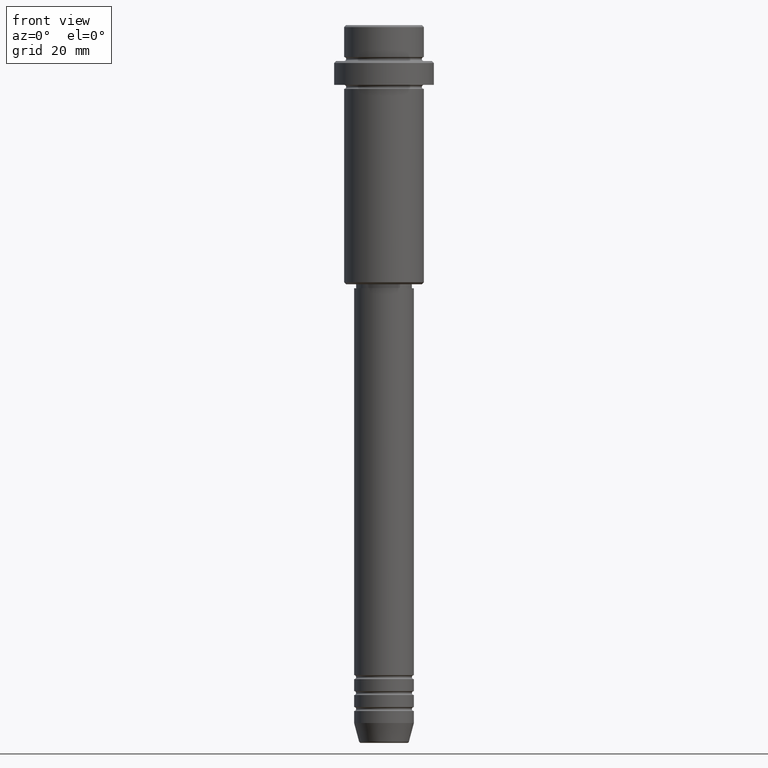
[diagram: clean part render]
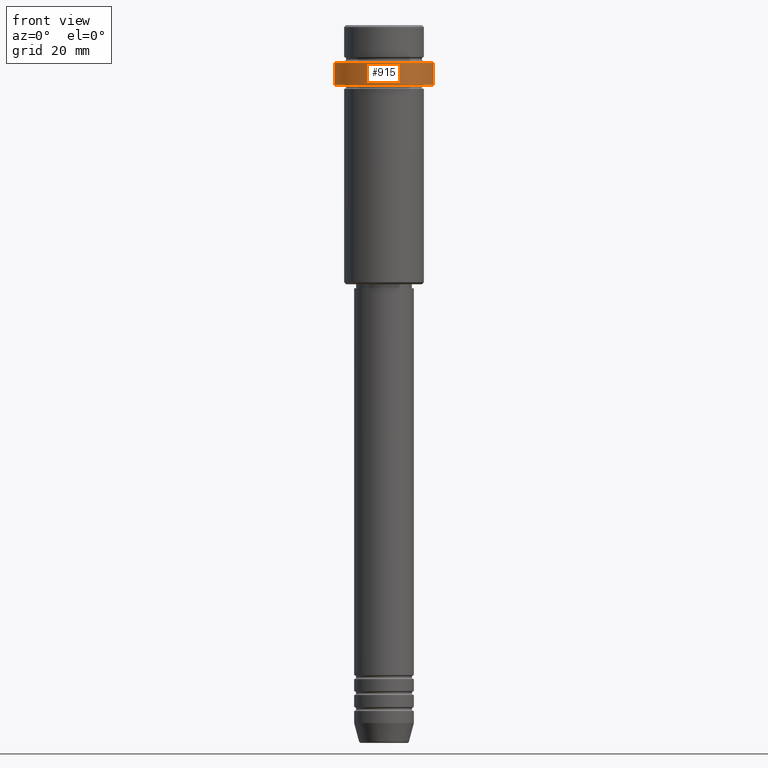
[diagram: same view with one face highlighted and labeled with its STEP entity id]
A machine part, front view. The second image highlights one B-rep face of the part: STEP entity #915.
In plain terms, the highlighted cylindrical surface (partial cylindrical patch) has radius 12.5 mm, axis along (-0, -0, 1).
Its self-contained STEP definition (entity closure, byte-faithful):
#44 = CARTESIAN_POINT ( 'NONE',  ( -12.50000000000000000, 1.530808498934191521E-15, -9.500000000000007105 ) ) ;
#93 = DIRECTION ( 'NONE',  ( -0.000000000000000000, -0.000000000000000000, 1.000000000000000000 ) ) ;
#152 = ORIENTED_EDGE ( 'NONE', *, *, #1085, .T. ) ;
#188 = VECTOR ( 'NONE', #93, 1000.000000000000000 ) ;
#240 = FACE_OUTER_BOUND ( 'NONE', #848, .T. ) ;
#267 = DIRECTION ( 'NONE',  ( 1.000000000000000000, 0.000000000000000000, 0.000000000000000000 ) ) ;
#279 = CARTESIAN_POINT ( 'NONE',  ( 12.50000000000000000, 0.000000000000000000, -9.500000000000007105 ) ) ;
#285 = CARTESIAN_POINT ( 'NONE',  ( 12.50000000000000000, 0.000000000000000000, 0.000000000000000000 ) ) ;
#292 = LINE ( 'NONE', #285, #676 ) ;
#309 = CARTESIAN_POINT ( 'NONE',  ( 0.000000000000000000, 0.000000000000000000, -15.00000000000000178 ) ) ;
#327 = AXIS2_PLACEMENT_3D ( 'NONE', #309, #1195, #1189 ) ;
#334 = ORIENTED_EDGE ( 'NONE', *, *, #1170, .T. ) ;
#467 = CARTESIAN_POINT ( 'NONE',  ( -12.50000000000000000, 1.530808498934191521E-15, -15.00000000000000178 ) ) ;
#508 = CARTESIAN_POINT ( 'NONE',  ( 0.000000000000000000, 0.000000000000000000, -9.500000000000007105 ) ) ;
#591 = DIRECTION ( 'NONE',  ( -0.000000000000000000, -0.000000000000000000, 1.000000000000000000 ) ) ;
#638 = LINE ( 'NONE', #1086, #188 ) ;
#676 = VECTOR ( 'NONE', #946, 1000.000000000000000 ) ;
#683 = ORIENTED_EDGE ( 'NONE', *, *, #1104, .T. ) ;
#767 = VERTEX_POINT ( 'NONE', #1190 ) ;
#848 = EDGE_LOOP ( 'NONE', ( #905, #334, #152, #683 ) ) ;
#873 = VERTEX_POINT ( 'NONE', #44 ) ;
#876 = VERTEX_POINT ( 'NONE', #467 ) ;
#889 = CIRCLE ( 'NONE', #327, 12.50000000000000000 ) ;
#899 = DIRECTION ( 'NONE',  ( 1.000000000000000000, 0.000000000000000000, 0.000000000000000000 ) ) ;
#905 = ORIENTED_EDGE ( 'NONE', *, *, #1258, .F. ) ;
#915 = ADVANCED_FACE ( 'NONE', ( #240 ), #1256, .T. ) ;
#927 = CARTESIAN_POINT ( 'NONE',  ( 0.000000000000000000, 0.000000000000000000, 0.000000000000000000 ) ) ;
#946 = DIRECTION ( 'NONE',  ( -0.000000000000000000, -0.000000000000000000, 1.000000000000000000 ) ) ;
#1023 = VERTEX_POINT ( 'NONE', #279 ) ;
#1085 = EDGE_CURVE ( 'NONE', #767, #1023, #292, .T. ) ;
#1086 = CARTESIAN_POINT ( 'NONE',  ( -12.50000000000000000, 1.530808498934191521E-15, 0.000000000000000000 ) ) ;
#1104 = EDGE_CURVE ( 'NONE', #1023, #873, #1253, .T. ) ;
#1170 = EDGE_CURVE ( 'NONE', #876, #767, #889, .T. ) ;
#1183 = AXIS2_PLACEMENT_3D ( 'NONE', #927, #591, #899 ) ;
#1184 = DIRECTION ( 'NONE',  ( 0.000000000000000000, 0.000000000000000000, -1.000000000000000000 ) ) ;
#1189 = DIRECTION ( 'NONE',  ( 1.000000000000000000, 0.000000000000000000, 0.000000000000000000 ) ) ;
#1190 = CARTESIAN_POINT ( 'NONE',  ( 12.50000000000000000, 0.000000000000000000, -15.00000000000000178 ) ) ;
#1195 = DIRECTION ( 'NONE',  ( -0.000000000000000000, -0.000000000000000000, 1.000000000000000000 ) ) ;
#1253 = CIRCLE ( 'NONE', #1334, 12.50000000000000000 ) ;
#1256 = CYLINDRICAL_SURFACE ( 'NONE', #1183, 12.50000000000000000 ) ;
#1258 = EDGE_CURVE ( 'NONE', #876, #873, #638, .T. ) ;
#1334 = AXIS2_PLACEMENT_3D ( 'NONE', #508, #1184, #267 ) ;